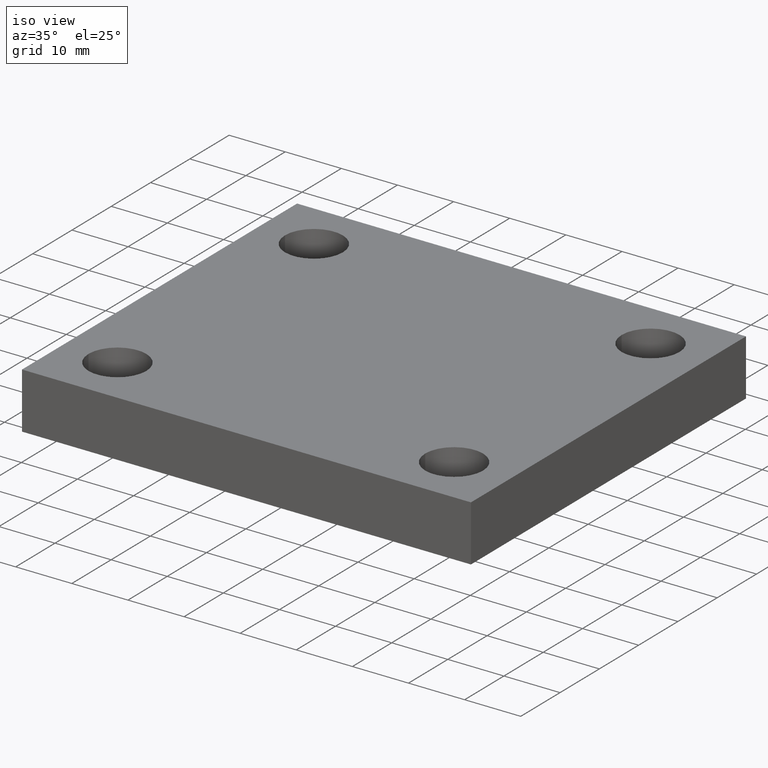
[diagram: clean part render]
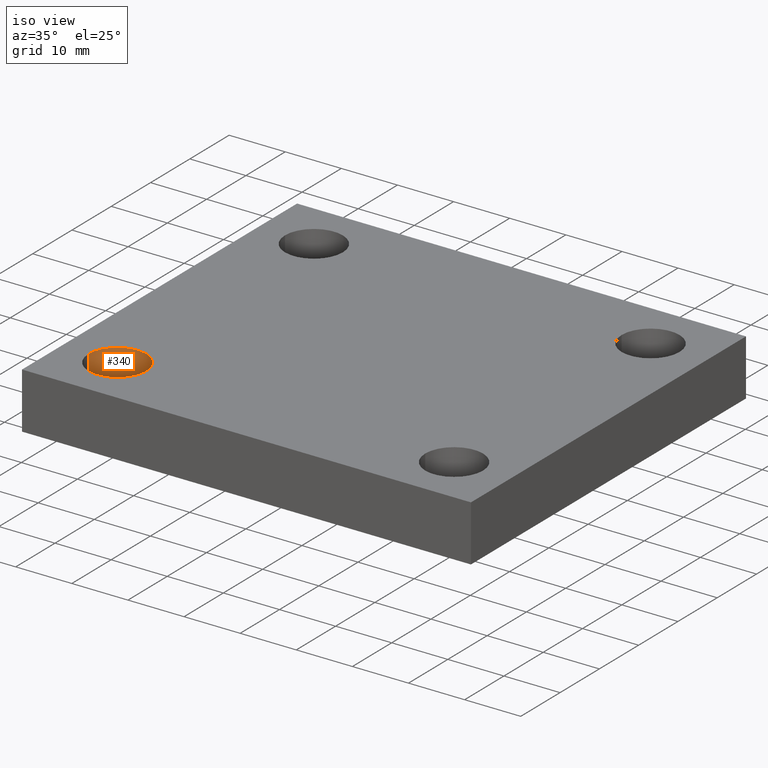
[diagram: same view with one face highlighted and labeled with its STEP entity id]
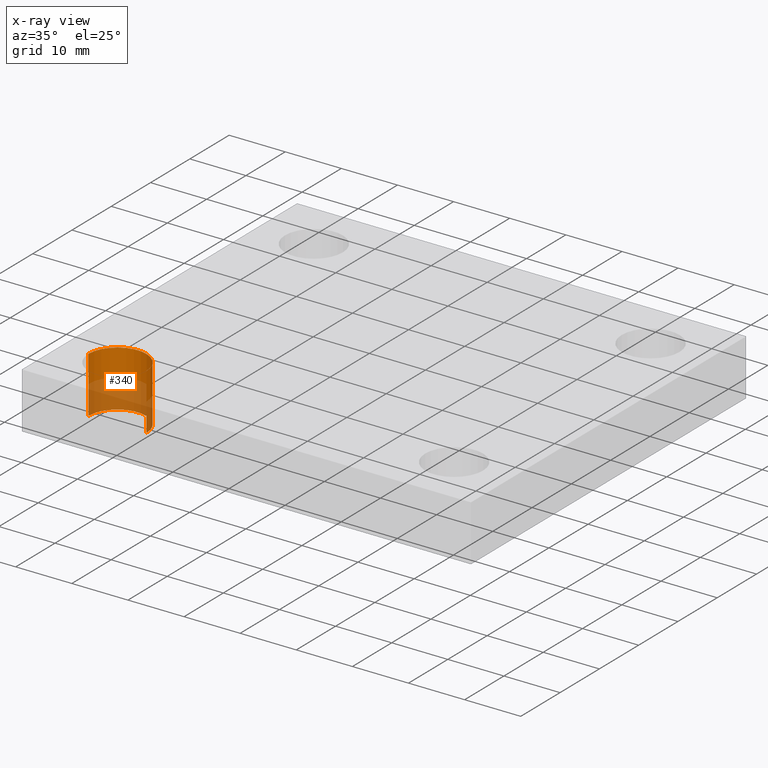
[diagram: x-ray of the same camera — body ghosted, the highlighted face saturated]
A machine part, iso view. The second image highlights one B-rep face of the part: STEP entity #340.
The next image is the same camera in x-ray: the body ghosted, the highlighted face saturated — about 51% of this face is hidden behind the body in this view.
In plain terms, the highlighted face is a freeform B-spline surface patch.
Its self-contained STEP definition (entity closure, byte-faithful):
#259=CARTESIAN_POINT('',(31.089752180801717,-44.027373815230888,0.0));
#260=VERTEX_POINT('',#259);
#261=CARTESIAN_POINT('',(31.089752180801721,-44.027373815230888,10.0));
#262=VERTEX_POINT('',#261);
#263=CARTESIAN_POINT('',(31.089752180801717,-44.027373815230888,0.0));
#264=DIRECTION('',(0.0,0.0,1.0));
#265=VECTOR('',#264,10.0);
#266=LINE('',#263,#265);
#267=EDGE_CURVE('',#260,#262,#266,.T.);
#269=CARTESIAN_POINT('',(20.789752180801720,-44.027373815230888,0.0));
#270=VERTEX_POINT('',#269);
#278=CARTESIAN_POINT('',(20.789752180801720,-44.027373815230888,10.0));
#279=VERTEX_POINT('',#278);
#280=CARTESIAN_POINT('',(20.789752180801720,-44.027373815230888,10.0));
#281=DIRECTION('',(0.0,0.0,-1.0));
#282=VECTOR('',#281,10.0);
#283=LINE('',#280,#282);
#284=EDGE_CURVE('',#279,#270,#283,.T.);
#296=CARTESIAN_POINT('',(20.789752180801720,-44.027373815230888,10.0));
#297=CARTESIAN_POINT('',(20.789752180801720,-44.027373815230888,0.0));
#298=CARTESIAN_POINT('',(20.789752180801720,-49.177373815230879,10.0));
#299=CARTESIAN_POINT('',(20.789752180801720,-49.177373815230879,0.0));
#300=CARTESIAN_POINT('',(25.939752180801719,-49.177373815230887,10.0));
#301=CARTESIAN_POINT('',(25.939752180801719,-49.177373815230887,0.0));
#302=CARTESIAN_POINT('',(31.089752180801717,-49.177373815230879,10.0));
#303=CARTESIAN_POINT('',(31.089752180801717,-49.177373815230879,0.0));
#304=CARTESIAN_POINT('',(31.089752180801717,-44.027373815230888,10.0));
#305=CARTESIAN_POINT('',(31.089752180801717,-44.027373815230888,0.0));
#306=CARTESIAN_POINT('',(31.089752180801717,-38.877373815230889,10.0));
#307=CARTESIAN_POINT('',(31.089752180801717,-38.877373815230889,0.0));
#308=CARTESIAN_POINT('',(25.939752180801719,-38.877373815230889,10.0));
#309=CARTESIAN_POINT('',(25.939752180801719,-38.877373815230889,0.0));
#310=CARTESIAN_POINT('',(20.789752180801720,-38.877373815230889,10.0));
#311=CARTESIAN_POINT('',(20.789752180801720,-38.877373815230889,0.0));
#312=CARTESIAN_POINT('',(20.789752180801720,-44.027373815230888,10.0));
#313=CARTESIAN_POINT('',(20.789752180801720,-44.027373815230888,0.0));
#321=(BOUNDED_SURFACE()B_SPLINE_SURFACE(1,2,((#296,#298,#300,#302,#304,#306,#308,#310,#312),(#297,#299,#301,#303,#305,#307,#309,#311,#313)),.UNSPECIFIED.,.F.,.T.,.U.)B_SPLINE_SURFACE_WITH_KNOTS((2,2),(3,2,2,2,3),(-20.732190780643325,-18.790443207827792),(0.0,8.089601082993719,16.179202165987437,24.268803248981154,32.358404331974874),.UNSPECIFIED.)GEOMETRIC_REPRESENTATION_ITEM()RATIONAL_B_SPLINE_SURFACE(((1.0,0.707106781186548,1.0,0.707106781186548,1.0,0.707106781186548,1.0,0.707106781186548,1.0),(1.0,0.707106781186548,1.0,0.707106781186548,1.0,0.707106781186548,1.0,0.707106781186548,1.0)))REPRESENTATION_ITEM('')SURFACE());
#322=ORIENTED_EDGE('',*,*,#267,.T.);
#323=CARTESIAN_POINT('',(25.939752180801719,-44.027373815230888,10.0));
#324=DIRECTION('',(0.0,0.0,-1.0));
#325=DIRECTION('',(1.0,0.0,0.0));
#326=AXIS2_PLACEMENT_3D('',#323,#324,#325);
#327=CIRCLE('',#326,5.150000000000000);
#328=EDGE_CURVE('',#279,#262,#327,.T.);
#329=ORIENTED_EDGE('',*,*,#328,.F.);
#330=ORIENTED_EDGE('',*,*,#284,.T.);
#331=CARTESIAN_POINT('',(25.939752180801719,-44.027373815230888,0.0));
#332=DIRECTION('',(0.0,0.0,1.0));
#333=DIRECTION('',(1.0,0.0,0.0));
#334=AXIS2_PLACEMENT_3D('',#331,#332,#333);
#335=CIRCLE('',#334,5.150000000000000);
#336=EDGE_CURVE('',#260,#270,#335,.T.);
#337=ORIENTED_EDGE('',*,*,#336,.F.);
#338=EDGE_LOOP('',(#322,#329,#330,#337));
#339=FACE_OUTER_BOUND('',#338,.T.);
#340=ADVANCED_FACE('',(#339),#321,.F.);